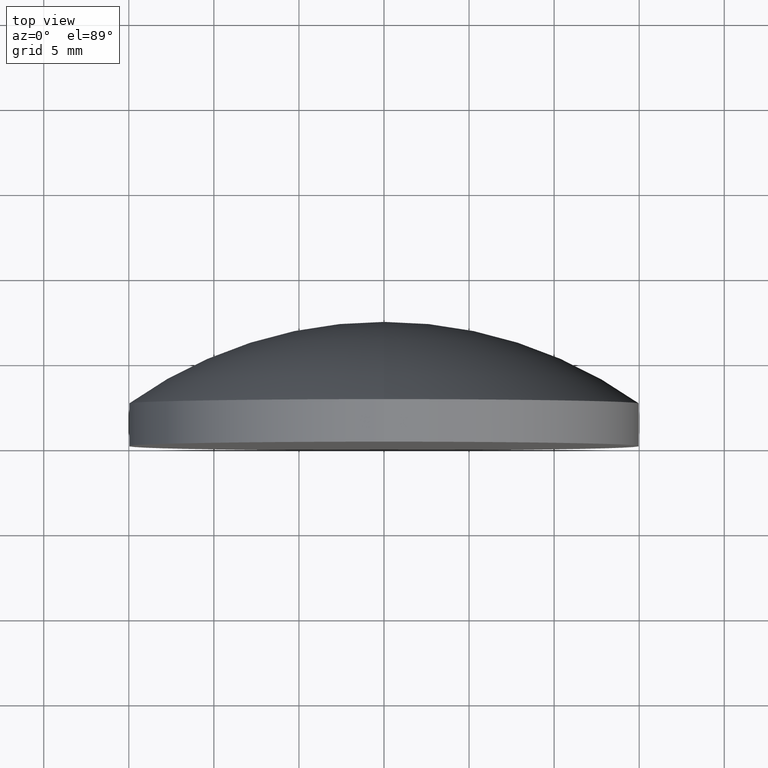
[diagram: clean part render]
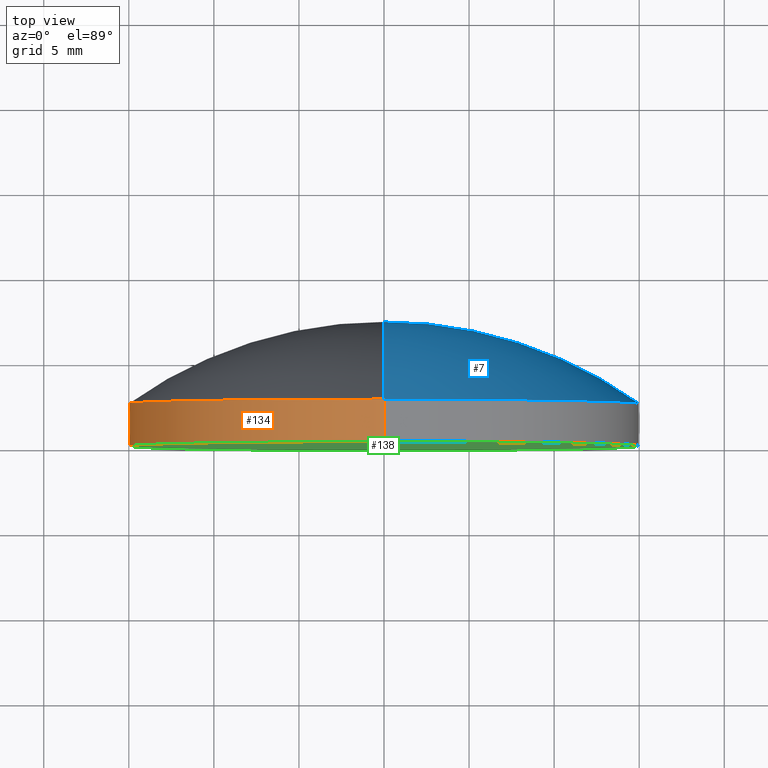
[diagram: same view with three faces highlighted in distinct colors, each labeled with its STEP entity id]
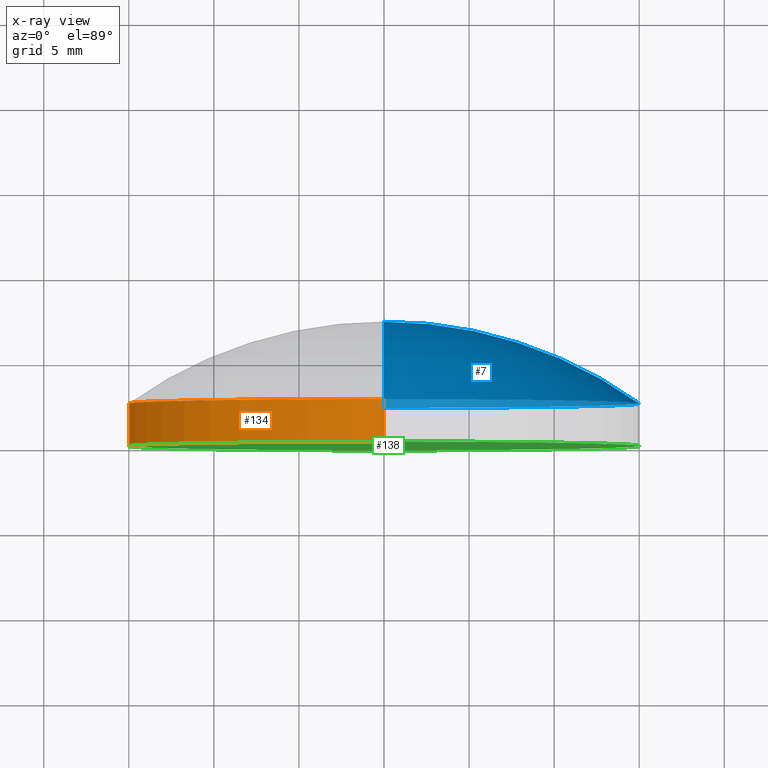
[diagram: x-ray of the same camera — body ghosted, the three highlighted faces saturated]
A machine part, top view with three faces highlighted in distinct colors.
The next image is the same camera in x-ray (body ghosted, the three faces saturated) — at least one of them is partly hidden behind the body in this view.
Their STEP definitions:

[orange] entity #134 — the highlighted cylindrical surface (partial cylindrical patch) has radius 15 mm, axis along (-0, 1, -0).
#12 = EDGE_CURVE ( 'NONE', #169, #70, #117, .T. ) ;
#20 = ORIENTED_EDGE ( 'NONE', *, *, #199, .T. ) ;
#27 = CARTESIAN_POINT ( 'NONE',  ( 0.000000000000000000, -1.734723475976807094E-15, 15.00000000000000000 ) ) ;
#29 = DIRECTION ( 'NONE',  ( -0.000000000000000000, 1.000000000000000000, -0.000000000000000000 ) ) ;
#43 = CARTESIAN_POINT ( 'NONE',  ( 0.000000000000000000, -1.734723475976807094E-15, 0.000000000000000000 ) ) ;
#45 = CARTESIAN_POINT ( 'NONE',  ( 0.000000000000000000, 2.499999999999998224, 15.00000000000000178 ) ) ;
#57 = CARTESIAN_POINT ( 'NONE',  ( 0.000000000000000000, 7.299999999999999822, 15.00000000000000000 ) ) ;
#58 = CARTESIAN_POINT ( 'NONE',  ( 1.836970198721029589E-15, 7.299999999999999822, -15.00000000000000000 ) ) ;
#62 = ORIENTED_EDGE ( 'NONE', *, *, #108, .F. ) ;
#67 = DIRECTION ( 'NONE',  ( -0.000000000000000000, 1.000000000000000000, -0.000000000000000000 ) ) ;
#70 = VERTEX_POINT ( 'NONE', #27 ) ;
#72 = DIRECTION ( 'NONE',  ( 0.000000000000000000, 0.000000000000000000, 1.000000000000000000 ) ) ;
#82 = DIRECTION ( 'NONE',  ( -0.000000000000000000, 1.000000000000000000, -0.000000000000000000 ) ) ;
#83 = CYLINDRICAL_SURFACE ( 'NONE', #90, 15.00000000000000000 ) ;
#85 = VERTEX_POINT ( 'NONE', #45 ) ;
#90 = AXIS2_PLACEMENT_3D ( 'NONE', #196, #184, #72 ) ;
#97 = FACE_OUTER_BOUND ( 'NONE', #133, .T. ) ;
#98 = LINE ( 'NONE', #58, #201 ) ;
#100 = VERTEX_POINT ( 'NONE', #191 ) ;
#101 = AXIS2_PLACEMENT_3D ( 'NONE', #164, #128, #167 ) ;
#107 = CIRCLE ( 'NONE', #101, 15.00000000000000000 ) ;
#108 = EDGE_CURVE ( 'NONE', #169, #100, #98, .T. ) ;
#112 = ORIENTED_EDGE ( 'NONE', *, *, #119, .F. ) ;
#115 = VECTOR ( 'NONE', #82, 1000.000000000000000 ) ;
#117 = CIRCLE ( 'NONE', #188, 15.00000000000000000 ) ;
#119 = EDGE_CURVE ( 'NONE', #100, #85, #107, .T. ) ;
#128 = DIRECTION ( 'NONE',  ( -0.000000000000000000, 1.000000000000000000, -0.000000000000000000 ) ) ;
#130 = ORIENTED_EDGE ( 'NONE', *, *, #12, .T. ) ;
#133 = EDGE_LOOP ( 'NONE', ( #62, #130, #20, #112 ) ) ;
#134 = ADVANCED_FACE ( 'NONE', ( #97 ), #83, .T. ) ;
#144 = LINE ( 'NONE', #57, #115 ) ;
#164 = CARTESIAN_POINT ( 'NONE',  ( 0.000000000000000000, 2.499999999999997780, 0.000000000000000000 ) ) ;
#167 = DIRECTION ( 'NONE',  ( 0.000000000000000000, 0.000000000000000000, 1.000000000000000000 ) ) ;
#169 = VERTEX_POINT ( 'NONE', #200 ) ;
#179 = DIRECTION ( 'NONE',  ( 0.000000000000000000, 0.000000000000000000, 1.000000000000000000 ) ) ;
#184 = DIRECTION ( 'NONE',  ( -0.000000000000000000, 1.000000000000000000, -0.000000000000000000 ) ) ;
#188 = AXIS2_PLACEMENT_3D ( 'NONE', #43, #67, #179 ) ;
#191 = CARTESIAN_POINT ( 'NONE',  ( 1.836970198721029589E-15, 2.499999999999998224, -15.00000000000000178 ) ) ;
#196 = CARTESIAN_POINT ( 'NONE',  ( 0.000000000000000000, 7.299999999999999822, 0.000000000000000000 ) ) ;
#199 = EDGE_CURVE ( 'NONE', #70, #85, #144, .T. ) ;
#200 = CARTESIAN_POINT ( 'NONE',  ( 1.836970198721029589E-15, -1.734723475976807094E-15, -15.00000000000000000 ) ) ;
#201 = VECTOR ( 'NONE', #29, 1000.000000000000000 ) ;

[blue] entity #7 — the highlighted toroidal blend (fillet) surface has major radius 0.0008 mm and minor (blend) radius 25.84 mm.
#5 = AXIS2_PLACEMENT_3D ( 'NONE', #71, #136, #40 ) ;
#7 = ADVANCED_FACE ( 'NONE', ( #197 ), #174, .T. ) ;
#17 = CIRCLE ( 'NONE', #181, 25.84000000000000696 ) ;
#19 = AXIS2_PLACEMENT_3D ( 'NONE', #52, #64, #102 ) ;
#37 = AXIS2_PLACEMENT_3D ( 'NONE', #86, #147, #150 ) ;
#40 = DIRECTION ( 'NONE',  ( 0.000000000000000000, 0.000000000000000000, 1.000000000000000000 ) ) ;
#45 = CARTESIAN_POINT ( 'NONE',  ( 0.000000000000000000, 2.499999999999998224, 15.00000000000000178 ) ) ;
#52 = CARTESIAN_POINT ( 'NONE',  ( 0.000000000000000000, -18.53999998761622692, -0.0007999960371955425198 ) ) ;
#59 = ORIENTED_EDGE ( 'NONE', *, *, #173, .T. ) ;
#60 = DIRECTION ( 'NONE',  ( 1.224646799147353207E-16, 0.000000000000000000, -1.000000000000000000 ) ) ;
#64 = DIRECTION ( 'NONE',  ( -1.000000000000000000, 0.000000000000000000, 0.000000000000000000 ) ) ;
#66 = CIRCLE ( 'NONE', #19, 25.84000000000000696 ) ;
#71 = CARTESIAN_POINT ( 'NONE',  ( 0.000000000000000000, 2.499999999999997780, 0.000000000000000000 ) ) ;
#85 = VERTEX_POINT ( 'NONE', #45 ) ;
#86 = CARTESIAN_POINT ( 'NONE',  ( 0.000000000000000000, -18.53999998761622692, 0.000000000000000000 ) ) ;
#100 = VERTEX_POINT ( 'NONE', #191 ) ;
#102 = DIRECTION ( 'NONE',  ( 0.000000000000000000, 0.000000000000000000, 1.000000000000000000 ) ) ;
#110 = CARTESIAN_POINT ( 'NONE',  ( -9.797125862820881380E-20, -18.53999998761622692, 0.0007999960371955425198 ) ) ;
#114 = EDGE_LOOP ( 'NONE', ( #59, #192, #166 ) ) ;
#123 = EDGE_CURVE ( 'NONE', #100, #158, #17, .T. ) ;
#131 = DIRECTION ( 'NONE',  ( 1.000000000000000000, 0.000000000000000000, 1.224646799147353207E-16 ) ) ;
#136 = DIRECTION ( 'NONE',  ( -0.000000000000000000, 1.000000000000000000, -0.000000000000000000 ) ) ;
#147 = DIRECTION ( 'NONE',  ( -0.000000000000000000, 1.000000000000000000, -0.000000000000000000 ) ) ;
#150 = DIRECTION ( 'NONE',  ( 0.000000000000000000, 0.000000000000000000, 1.000000000000000000 ) ) ;
#153 = CARTESIAN_POINT ( 'NONE',  ( 0.000000000000000000, 7.299999999999999822, 0.000000000000000000 ) ) ;
#155 = EDGE_CURVE ( 'NONE', #85, #158, #66, .T. ) ;
#158 = VERTEX_POINT ( 'NONE', #153 ) ;
#166 = ORIENTED_EDGE ( 'NONE', *, *, #155, .F. ) ;
#168 = CIRCLE ( 'NONE', #5, 15.00000000000000000 ) ;
#173 = EDGE_CURVE ( 'NONE', #85, #100, #168, .T. ) ;
#174 = TOROIDAL_SURFACE ( 'NONE', #37, -0.0007999960371955425198, 25.84000000000000696 ) ;
#181 = AXIS2_PLACEMENT_3D ( 'NONE', #110, #131, #60 ) ;
#191 = CARTESIAN_POINT ( 'NONE',  ( 1.836970198721029589E-15, 2.499999999999998224, -15.00000000000000178 ) ) ;
#192 = ORIENTED_EDGE ( 'NONE', *, *, #123, .T. ) ;
#197 = FACE_OUTER_BOUND ( 'NONE', #114, .T. ) ;

[green] entity #138 — the highlighted planar face has unit normal (0, -1, 0).
#10 = CARTESIAN_POINT ( 'NONE',  ( 0.000000000000000000, -1.734723475976807094E-15, 0.000000000000000000 ) ) ;
#11 = CIRCLE ( 'NONE', #55, 15.00000000000000000 ) ;
#12 = EDGE_CURVE ( 'NONE', #169, #70, #117, .T. ) ;
#27 = CARTESIAN_POINT ( 'NONE',  ( 0.000000000000000000, -1.734723475976807094E-15, 15.00000000000000000 ) ) ;
#43 = CARTESIAN_POINT ( 'NONE',  ( 0.000000000000000000, -1.734723475976807094E-15, 0.000000000000000000 ) ) ;
#46 = EDGE_LOOP ( 'NONE', ( #76, #48 ) ) ;
#48 = ORIENTED_EDGE ( 'NONE', *, *, #12, .F. ) ;
#49 = AXIS2_PLACEMENT_3D ( 'NONE', #137, #170, #182 ) ;
#50 = EDGE_CURVE ( 'NONE', #70, #169, #11, .T. ) ;
#55 = AXIS2_PLACEMENT_3D ( 'NONE', #10, #69, #193 ) ;
#67 = DIRECTION ( 'NONE',  ( -0.000000000000000000, 1.000000000000000000, -0.000000000000000000 ) ) ;
#69 = DIRECTION ( 'NONE',  ( -0.000000000000000000, 1.000000000000000000, -0.000000000000000000 ) ) ;
#70 = VERTEX_POINT ( 'NONE', #27 ) ;
#76 = ORIENTED_EDGE ( 'NONE', *, *, #50, .F. ) ;
#103 = FACE_OUTER_BOUND ( 'NONE', #46, .T. ) ;
#117 = CIRCLE ( 'NONE', #188, 15.00000000000000000 ) ;
#118 = PLANE ( 'NONE',  #49 ) ;
#137 = CARTESIAN_POINT ( 'NONE',  ( 0.000000000000000000, -9.184850993605147944E-16, 0.000000000000000000 ) ) ;
#138 = ADVANCED_FACE ( 'NONE', ( #103 ), #118, .T. ) ;
#169 = VERTEX_POINT ( 'NONE', #200 ) ;
#170 = DIRECTION ( 'NONE',  ( 0.000000000000000000, -1.000000000000000000, 0.000000000000000000 ) ) ;
#179 = DIRECTION ( 'NONE',  ( 0.000000000000000000, 0.000000000000000000, 1.000000000000000000 ) ) ;
#182 = DIRECTION ( 'NONE',  ( 0.000000000000000000, -0.000000000000000000, -1.000000000000000000 ) ) ;
#188 = AXIS2_PLACEMENT_3D ( 'NONE', #43, #67, #179 ) ;
#193 = DIRECTION ( 'NONE',  ( 0.000000000000000000, 0.000000000000000000, 1.000000000000000000 ) ) ;
#200 = CARTESIAN_POINT ( 'NONE',  ( 1.836970198721029589E-15, -1.734723475976807094E-15, -15.00000000000000000 ) ) ;